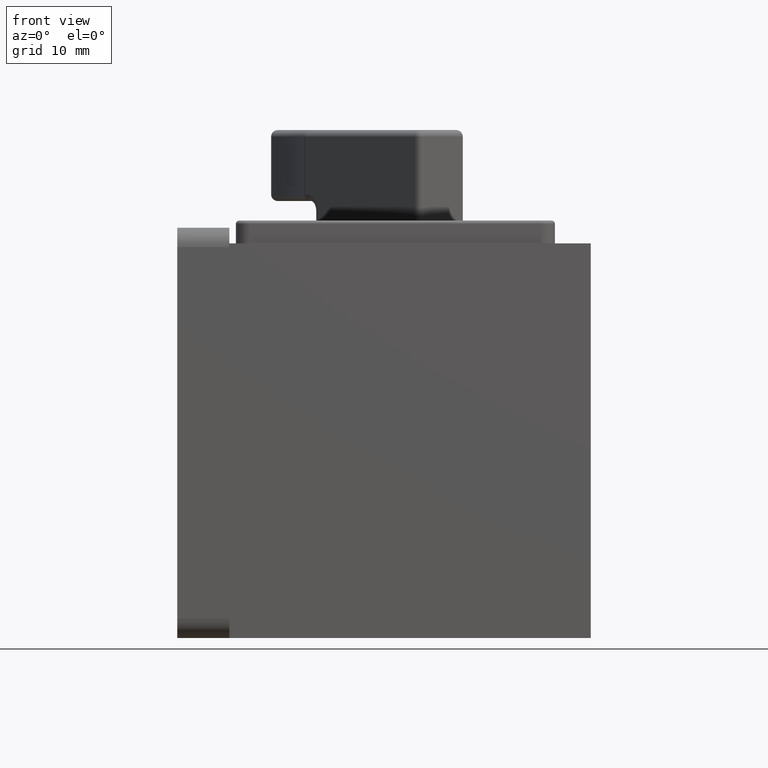
[diagram: clean part render]
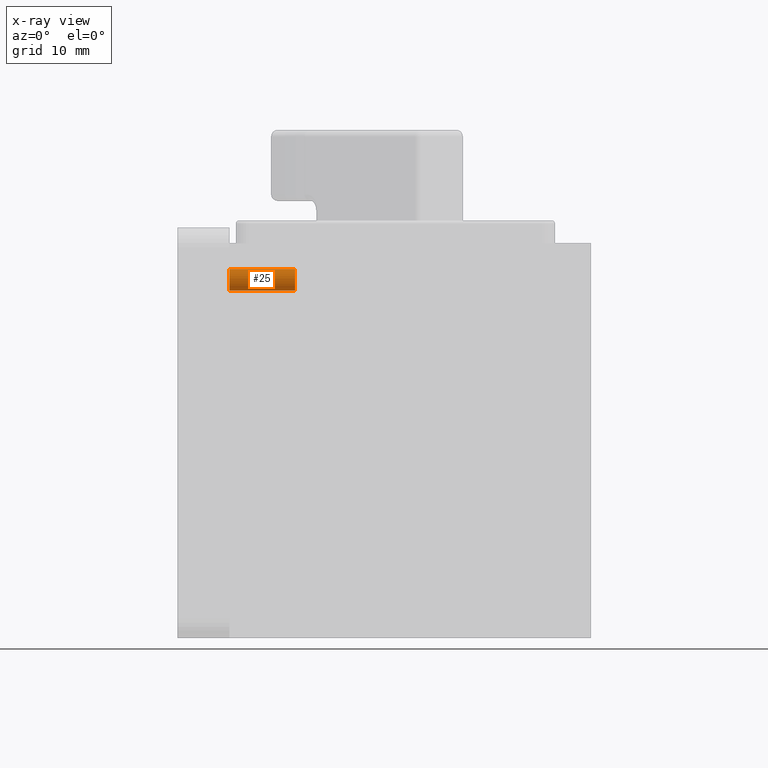
[diagram: x-ray — body ghosted, one internal face saturated and labeled with its STEP entity id]
A machine part, front view, then the same camera in x-ray: the body is ghosted and one INTERNAL B-rep face — a face not visible from any outside direction — is saturated and labeled: STEP entity #25.
In plain terms, the highlighted cylindrical surface (edge-blend (fillet) strip) has radius 1.65 mm, axis along (-1, 0, 0).
Its self-contained STEP definition (entity closure, byte-faithful):
#25 = ADVANCED_FACE ( 'NONE', ( #6133 ), #5214, .F. ) ;
#219 = EDGE_CURVE ( 'NONE', #7356, #4150, #9937, .T. ) ;
#699 = AXIS2_PLACEMENT_3D ( 'NONE', #1497, #3444, #7210 ) ;
#1012 = CIRCLE ( 'NONE', #699, 1.649999999999984800 ) ;
#1250 = VERTEX_POINT ( 'NONE', #12198 ) ;
#1497 = CARTESIAN_POINT ( 'NONE',  ( 10.09999999999999100, 17.00000000000000000, 23.50000000000000000 ) ) ;
#1907 = CARTESIAN_POINT ( 'NONE',  ( -6.938893903907228400E-015, 17.00000000000000000, 21.85000000000000900 ) ) ;
#2542 = ORIENTED_EDGE ( 'NONE', *, *, #219, .T. ) ;
#2715 = EDGE_CURVE ( 'NONE', #1250, #2839, #1012, .T. ) ;
#2770 = DIRECTION ( 'NONE',  ( -1.000000000000000000, 0.0000000000000000000, 0.0000000000000000000 ) ) ;
#2839 = VERTEX_POINT ( 'NONE', #3485 ) ;
#2938 = ORIENTED_EDGE ( 'NONE', *, *, #2715, .F. ) ;
#2953 = LINE ( 'NONE', #7190, #8899 ) ;
#3024 = ORIENTED_EDGE ( 'NONE', *, *, #6391, .F. ) ;
#3444 = DIRECTION ( 'NONE',  ( -1.000000000000000000, 0.0000000000000000000, 0.0000000000000000000 ) ) ;
#3485 = CARTESIAN_POINT ( 'NONE',  ( 10.09999999999999100, 17.00000000000000000, 25.14999999999998400 ) ) ;
#4150 = VERTEX_POINT ( 'NONE', #4919 ) ;
#4667 = CARTESIAN_POINT ( 'NONE',  ( -6.938893903907228400E-015, 17.00000000000000000, 23.50000000000000000 ) ) ;
#4752 = DIRECTION ( 'NONE',  ( 0.0000000000000000000, 0.0000000000000000000, 1.000000000000000000 ) ) ;
#4919 = CARTESIAN_POINT ( 'NONE',  ( -6.938893903907228400E-015, 17.00000000000000000, 25.14999999999999100 ) ) ;
#5214 = CYLINDRICAL_SURFACE ( 'NONE', #7817, 1.649999999999988400 ) ;
#5825 = VECTOR ( 'NONE', #9433, 1000.000000000000000 ) ;
#5969 = DIRECTION ( 'NONE',  ( 0.0000000000000000000, 0.0000000000000000000, 1.000000000000000000 ) ) ;
#6133 = FACE_OUTER_BOUND ( 'NONE', #6952, .T. ) ;
#6391 = EDGE_CURVE ( 'NONE', #2839, #4150, #2953, .T. ) ;
#6952 = EDGE_LOOP ( 'NONE', ( #2938, #10424, #2542, #3024 ) ) ;
#7190 = CARTESIAN_POINT ( 'NONE',  ( -6.938893903907228400E-015, 17.00000000000000000, 25.14999999999998800 ) ) ;
#7206 = EDGE_CURVE ( 'NONE', #1250, #7356, #12214, .T. ) ;
#7210 = DIRECTION ( 'NONE',  ( 0.0000000000000000000, 0.0000000000000000000, 1.000000000000000000 ) ) ;
#7356 = VERTEX_POINT ( 'NONE', #1907 ) ;
#7817 = AXIS2_PLACEMENT_3D ( 'NONE', #4667, #2770, #4752 ) ;
#7871 = DIRECTION ( 'NONE',  ( -1.000000000000000000, 0.0000000000000000000, 0.0000000000000000000 ) ) ;
#8899 = VECTOR ( 'NONE', #7871, 1000.000000000000000 ) ;
#9433 = DIRECTION ( 'NONE',  ( -1.000000000000000000, 0.0000000000000000000, 0.0000000000000000000 ) ) ;
#9937 = CIRCLE ( 'NONE', #12536, 1.649999999999991700 ) ;
#10279 = CARTESIAN_POINT ( 'NONE',  ( -6.938893903907228400E-015, 17.00000000000000000, 21.85000000000001200 ) ) ;
#10424 = ORIENTED_EDGE ( 'NONE', *, *, #7206, .T. ) ;
#10771 = DIRECTION ( 'NONE',  ( -1.000000000000000000, 0.0000000000000000000, 0.0000000000000000000 ) ) ;
#12198 = CARTESIAN_POINT ( 'NONE',  ( 10.09999999999999100, 17.00000000000000000, 21.85000000000001600 ) ) ;
#12214 = LINE ( 'NONE', #10279, #5825 ) ;
#12536 = AXIS2_PLACEMENT_3D ( 'NONE', #12624, #10771, #5969 ) ;
#12624 = CARTESIAN_POINT ( 'NONE',  ( -6.938893903907228400E-015, 17.00000000000000000, 23.50000000000000000 ) ) ;